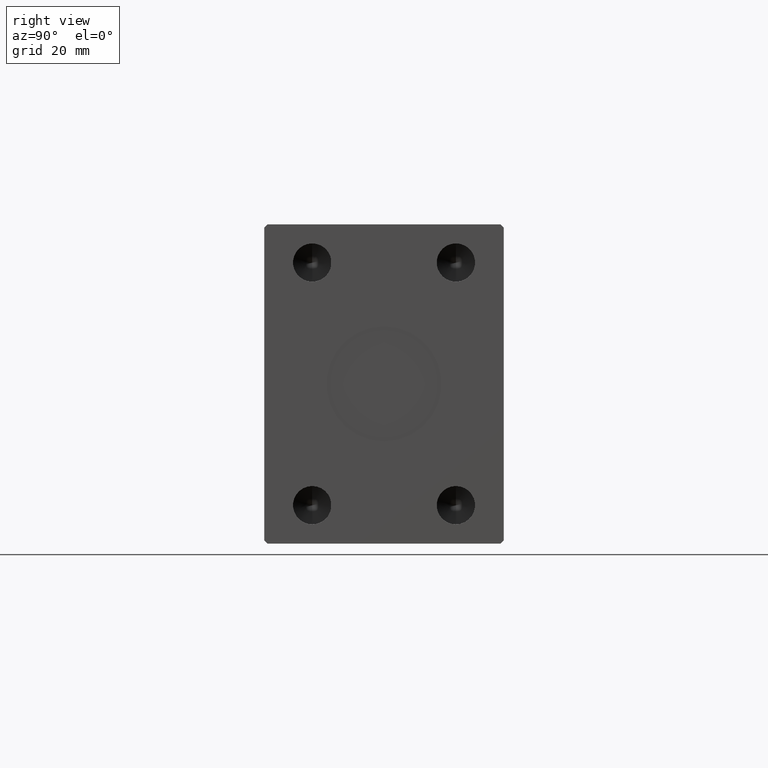
[diagram: clean part render]
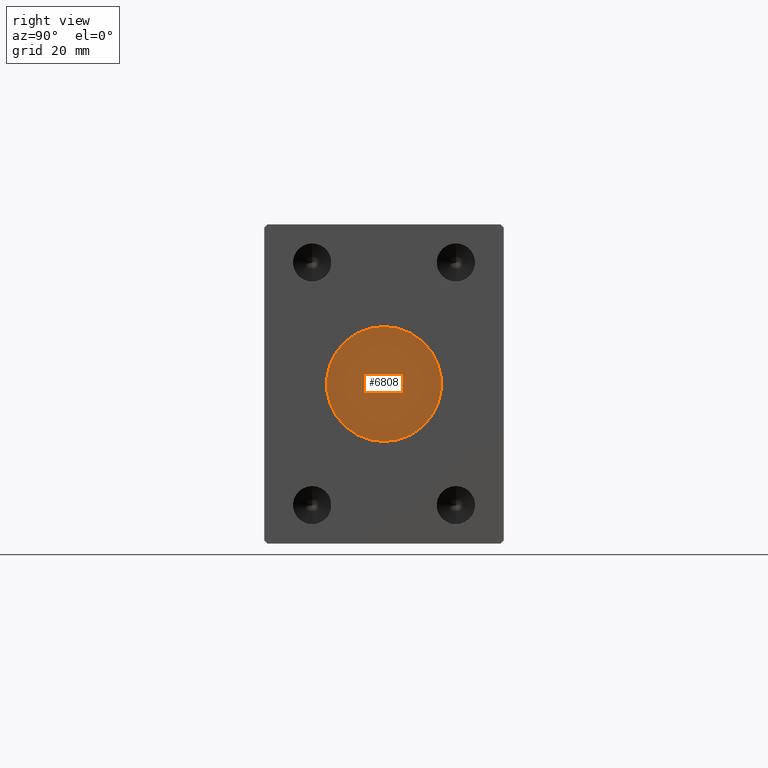
[diagram: same view with one face highlighted and labeled with its STEP entity id]
A machine part, right view. The second image highlights one B-rep face of the part: STEP entity #6808.
In plain terms, the highlighted planar face has unit normal (1, 0, 0).
Its self-contained STEP definition (entity closure, byte-faithful):
#3313 = CARTESIAN_POINT ( 'NONE',  ( 181.7999999999999829, 0.000000000000000000, 0.000000000000000000 ) ) ;
#3446 = CIRCLE ( 'NONE', #4852, 18.00000000000000000 ) ;
#4852 = AXIS2_PLACEMENT_3D ( 'NONE', #36435, #5302, #5959 ) ;
#5302 = DIRECTION ( 'NONE',  ( 1.000000000000000000, 0.000000000000000000, 0.000000000000000000 ) ) ;
#5959 = DIRECTION ( 'NONE',  ( 0.000000000000000000, 0.000000000000000000, -1.000000000000000000 ) ) ;
#6145 = EDGE_CURVE ( 'NONE', #28386, #12317, #3446, .T. ) ;
#6183 = PLANE ( 'NONE',  #24079 ) ;
#6808 = ADVANCED_FACE ( 'NONE', ( #33098 ), #6183, .T. ) ;
#7046 = EDGE_LOOP ( 'NONE', ( #20920, #41462 ) ) ;
#8997 = AXIS2_PLACEMENT_3D ( 'NONE', #3313, #10655, #38012 ) ;
#10655 = DIRECTION ( 'NONE',  ( 1.000000000000000000, 0.000000000000000000, 0.000000000000000000 ) ) ;
#12317 = VERTEX_POINT ( 'NONE', #15223 ) ;
#15223 = CARTESIAN_POINT ( 'NONE',  ( 181.7999999999999829, 0.000000000000000000, -18.00000000000000000 ) ) ;
#20920 = ORIENTED_EDGE ( 'NONE', *, *, #23030, .T. ) ;
#23030 = EDGE_CURVE ( 'NONE', #12317, #28386, #41676, .T. ) ;
#24079 = AXIS2_PLACEMENT_3D ( 'NONE', #29544, #33321, #39351 ) ;
#28386 = VERTEX_POINT ( 'NONE', #32111 ) ;
#29544 = CARTESIAN_POINT ( 'NONE',  ( 181.7999999999999829, 0.000000000000000000, 0.000000000000000000 ) ) ;
#32111 = CARTESIAN_POINT ( 'NONE',  ( 181.7999999999999829, 2.204364238465235428E-15, 18.00000000000000000 ) ) ;
#33098 = FACE_OUTER_BOUND ( 'NONE', #7046, .T. ) ;
#33321 = DIRECTION ( 'NONE',  ( 1.000000000000000000, 0.000000000000000000, 0.000000000000000000 ) ) ;
#36435 = CARTESIAN_POINT ( 'NONE',  ( 181.7999999999999829, 0.000000000000000000, 0.000000000000000000 ) ) ;
#38012 = DIRECTION ( 'NONE',  ( 0.000000000000000000, 0.000000000000000000, -1.000000000000000000 ) ) ;
#39351 = DIRECTION ( 'NONE',  ( 0.000000000000000000, 0.000000000000000000, -1.000000000000000000 ) ) ;
#41462 = ORIENTED_EDGE ( 'NONE', *, *, #6145, .T. ) ;
#41676 = CIRCLE ( 'NONE', #8997, 18.00000000000000000 ) ;